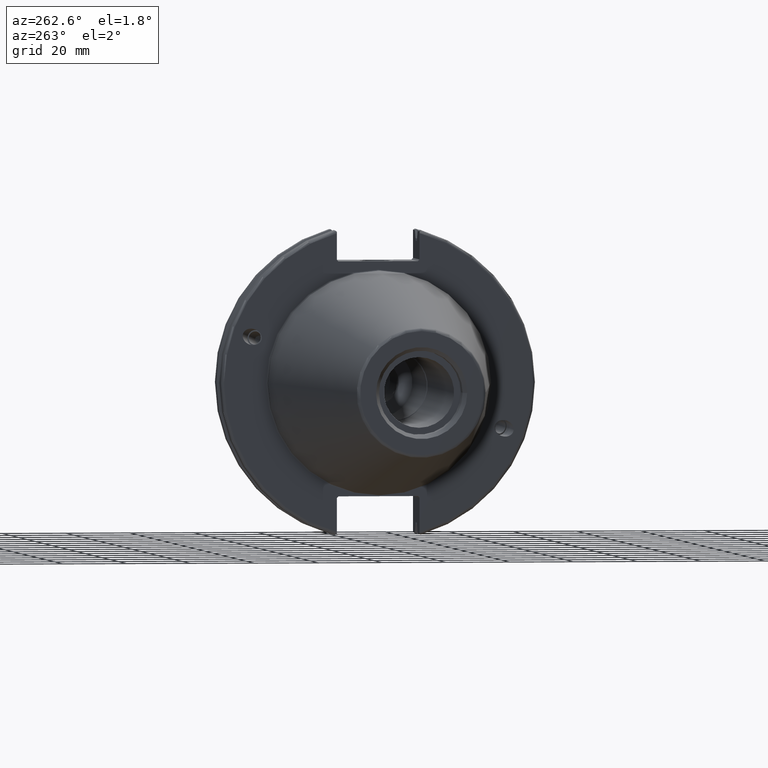
[diagram: clean part render]
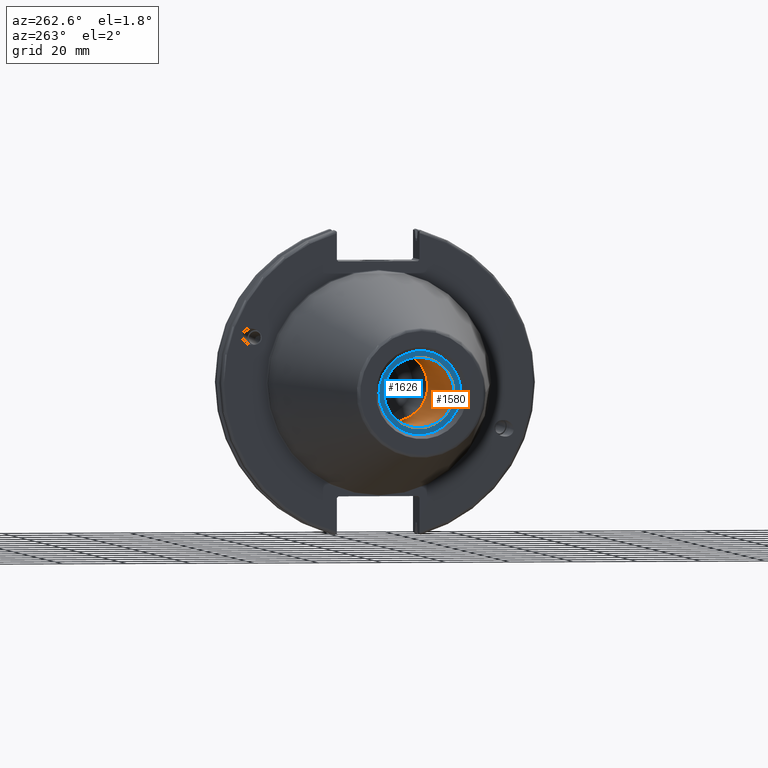
[diagram: same view with the hole feature highlighted: cylindrical wall and planar end face, labeled with their STEP entity ids]
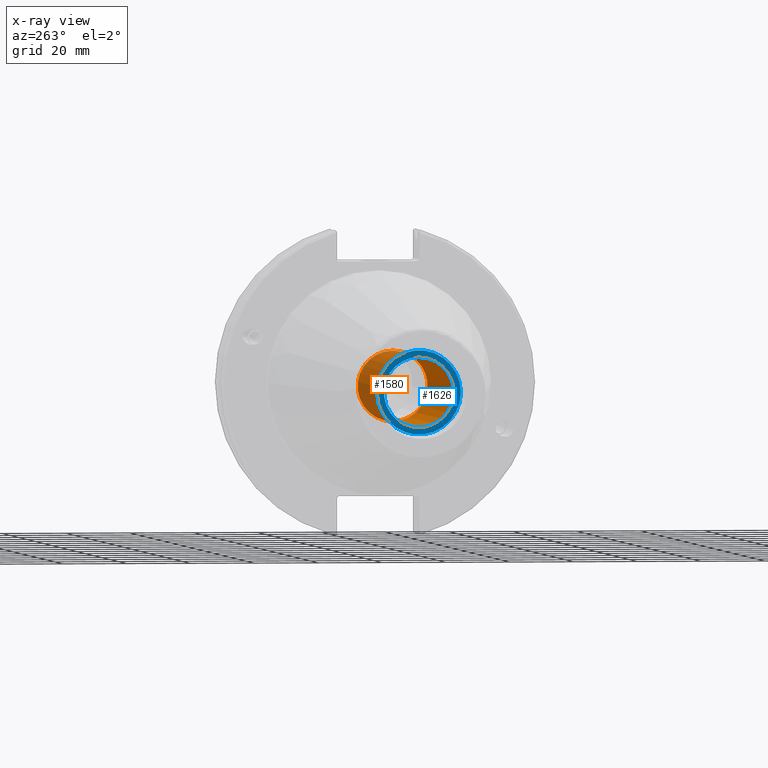
[diagram: x-ray of the same camera — body ghosted, the hole faces saturated]
A machine part, auxiliary view. The highlighted faces form one hole feature of diameter 21.971 mm: the cylindrical wall (entity #1580, orange) and its adjacent planar end face (entity #1626, blue) — they share a circular edge in the B-rep.
The next image is the same camera in x-ray (body ghosted, the hole faces saturated) — the bore reads through the body.
Wall:
#161=CYLINDRICAL_SURFACE('',#1749,10.9855);
#216=FACE_OUTER_BOUND('',#324,.T.);
#324=EDGE_LOOP('',(#1272,#1273,#1274,#1275));
#427=LINE('',#2922,#525);
#525=VECTOR('',#2080,10.9855);
#622=CIRCLE('',#1748,10.9855);
#623=CIRCLE('',#1750,10.9855);
#753=VERTEX_POINT('',#2916);
#754=VERTEX_POINT('',#2920);
#943=EDGE_CURVE('',#753,#753,#622,.T.);
#945=EDGE_CURVE('',#754,#754,#623,.T.);
#946=EDGE_CURVE('',#754,#753,#427,.T.);
#1272=ORIENTED_EDGE('',*,*,#945,.F.);
#1273=ORIENTED_EDGE('',*,*,#946,.T.);
#1274=ORIENTED_EDGE('',*,*,#943,.F.);
#1275=ORIENTED_EDGE('',*,*,#946,.F.);
#1580=ADVANCED_FACE('',(#216),#161,.F.);
#1748=AXIS2_PLACEMENT_3D('',#2917,#2073,#2074);
#1749=AXIS2_PLACEMENT_3D('',#2919,#2076,#2077);
#1750=AXIS2_PLACEMENT_3D('',#2921,#2078,#2079);
#2073=DIRECTION('center_axis',(-1.,0.,0.));
#2074=DIRECTION('ref_axis',(0.,0.,1.));
#2076=DIRECTION('center_axis',(-1.,0.,0.));
#2077=DIRECTION('ref_axis',(0.,0.,1.));
#2078=DIRECTION('center_axis',(1.,0.,0.));
#2079=DIRECTION('ref_axis',(0.,0.,1.));
#2080=DIRECTION('',(1.,0.,0.));
#2916=CARTESIAN_POINT('',(-31.6,-1.34533574120333E-15,-10.9855));
#2917=CARTESIAN_POINT('Origin',(-31.6,0.,0.));
#2919=CARTESIAN_POINT('Origin',(-66.6,0.,0.));
#2920=CARTESIAN_POINT('',(-95.25,1.34533574120333E-15,-10.9855));
#2921=CARTESIAN_POINT('Origin',(-95.25,0.,0.));
#2922=CARTESIAN_POINT('',(-66.6,-1.34533574120333E-15,-10.9855));
End face:
#67=PLANE('',#1825);
#98=FACE_BOUND('',#376,.T.);
#262=FACE_OUTER_BOUND('',#375,.T.);
#375=EDGE_LOOP('',(#1517));
#376=EDGE_LOOP('',(#1518));
#623=CIRCLE('',#1750,10.9855);
#651=CIRCLE('',#1821,13.1);
#754=VERTEX_POINT('',#2920);
#809=VERTEX_POINT('',#3227);
#945=EDGE_CURVE('',#754,#754,#623,.T.);
#1042=EDGE_CURVE('',#809,#809,#651,.T.);
#1517=ORIENTED_EDGE('',*,*,#1042,.F.);
#1518=ORIENTED_EDGE('',*,*,#945,.T.);
#1626=ADVANCED_FACE('',(#262,#98),#67,.T.);
#1750=AXIS2_PLACEMENT_3D('',#2921,#2078,#2079);
#1821=AXIS2_PLACEMENT_3D('',#3228,#2265,#2266);
#1825=AXIS2_PLACEMENT_3D('',#3236,#2276,#2277);
#2078=DIRECTION('center_axis',(1.,0.,0.));
#2079=DIRECTION('ref_axis',(0.,0.,1.));
#2265=DIRECTION('center_axis',(1.,0.,0.));
#2266=DIRECTION('ref_axis',(0.,0.,-1.));
#2276=DIRECTION('center_axis',(-1.,0.,0.));
#2277=DIRECTION('ref_axis',(0.,0.,1.));
#2920=CARTESIAN_POINT('',(-95.25,1.34533574120333E-15,-10.9855));
#2921=CARTESIAN_POINT('Origin',(-95.25,0.,0.));
#3227=CARTESIAN_POINT('',(-95.25,-13.1,-1.60428730688303E-15));
#3228=CARTESIAN_POINT('Origin',(-95.25,0.,0.));
#3236=CARTESIAN_POINT('Origin',(-95.25,13.1,0.));